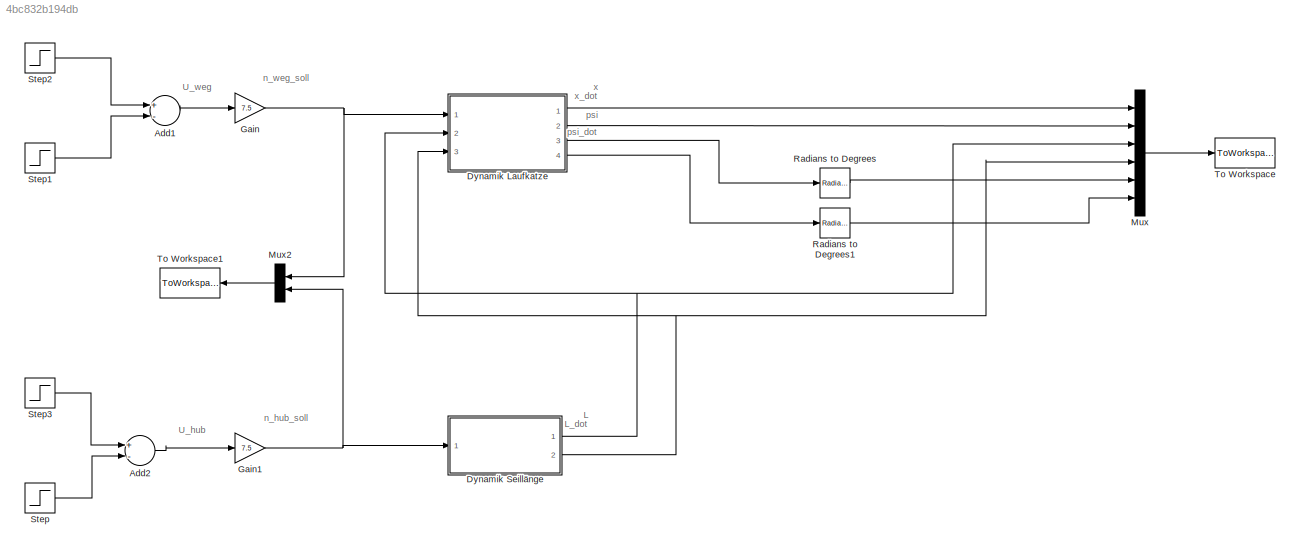
MODEL slx_4bc832b194db
KIND model
CONFIG AbsTol = auto
CONFIG EnableMultiTasking = off
CONFIG FixedStep = auto
CONFIG MaxStep = auto
CONFIG MinStep = auto
CONFIG RelTol = 1e-3
CONFIG SampleTimeConstraint = Unconstrained
CONFIG Solver = VariableStepAuto
CONFIG SolverName = VariableStepAuto
CONFIG StartTime = 0.0
CONFIG StopTime = 15
BLOCK [Sum] Add1
  InputSameDT = off
  Inputs = +-
  OutDataTypeStr = Inherit: Inherit via internal rule
  Ports = [2, 1]
  SaturateOnIntegerOverflow = off
BLOCK [Sum] Add2
  InputSameDT = off
  Inputs = +-
  OutDataTypeStr = Inherit: Inherit via internal rule
  Ports = [2, 1]
  SaturateOnIntegerOverflow = off
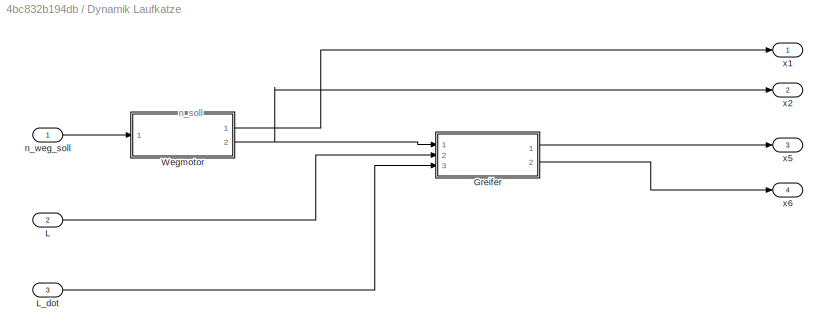
BLOCK [SubSystem] Dynamik Laufkatze
  Ports = [3, 4]
  RequestExecContextInheritance = off
  Variant = off
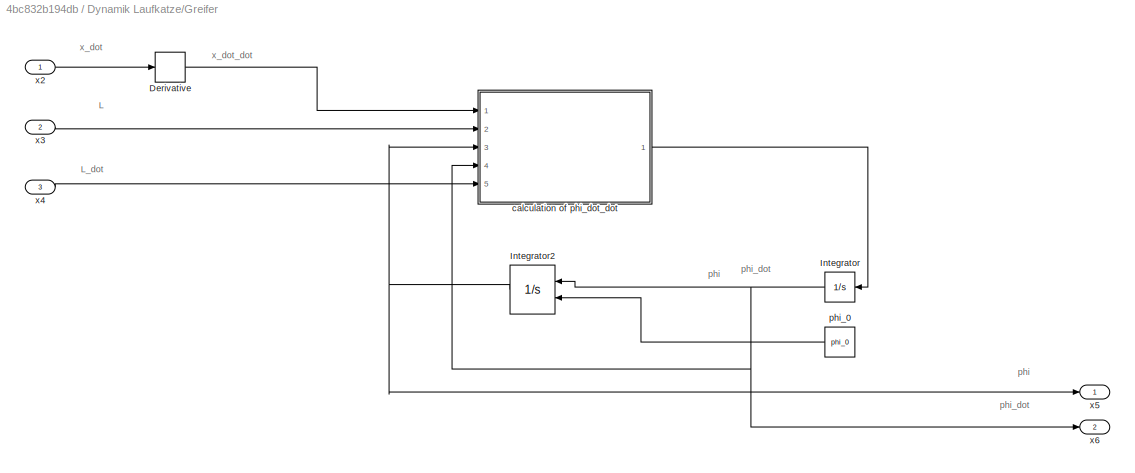
BLOCK [SubSystem] Dynamik Laufkatze/Greifer
  Ports = [3, 2]
  RequestExecContextInheritance = off
  Variant = off
BLOCK [Derivative] Dynamik Laufkatze/Greifer/Derivative
BLOCK [Integrator] Dynamik Laufkatze/Greifer/Integrator
  Ports = [1, 1]
BLOCK [Integrator] Dynamik Laufkatze/Greifer/Integrator2
  InitialConditionSource = external
  Ports = [2, 1]
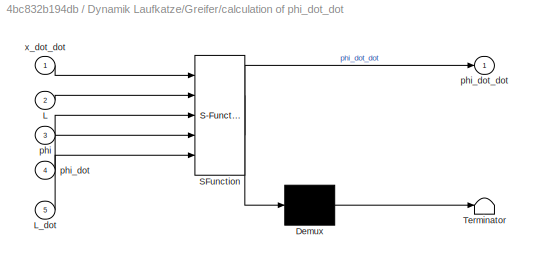
BLOCK [SubSystem] Dynamik Laufkatze/Greifer/calculation of phi_dot_dot
  ErrorFcn = Stateflow.Translate.translate
  PermitHierarchicalResolution = ExplicitOnly
  Ports = [5, 1]
  RequestExecContextInheritance = off
  SFBlockType = MATLAB Function
  TreatAsAtomicUnit = on
  Variant = off
BLOCK [Demux] Dynamik Laufkatze/Greifer/calculation of phi_dot_dot/ Demux 
  DisplayOption = bar
  Outputs = 1
  Ports = [1, 1]
BLOCK [S-Function] Dynamik Laufkatze/Greifer/calculation of phi_dot_dot/ SFunction 
  EnableBusSupport = off
  FunctionName = sf_sfun
  PortCounts = [5 2]
  Ports = [5, 2]
  SFcnIsStateOwnerBlock = off
  SFunctionDeploymentMode = off
  Tag = Stateflow S-Function nichtlinearesModell 2
BLOCK [Terminator] Dynamik Laufkatze/Greifer/calculation of phi_dot_dot/ Terminator 
BLOCK [Inport] Dynamik Laufkatze/Greifer/calculation of phi_dot_dot/L
  IconDisplay = Port number
  Port = 2
BLOCK [Inport] Dynamik Laufkatze/Greifer/calculation of phi_dot_dot/L_dot
  IconDisplay = Port number
  Port = 5
BLOCK [Inport] Dynamik Laufkatze/Greifer/calculation of phi_dot_dot/phi
  IconDisplay = Port number
  Port = 3
BLOCK [Inport] Dynamik Laufkatze/Greifer/calculation of phi_dot_dot/phi_dot
  IconDisplay = Port number
  Port = 4
BLOCK [Outport] Dynamik Laufkatze/Greifer/calculation of phi_dot_dot/phi_dot_dot
  IconDisplay = Port number
BLOCK [Inport] Dynamik Laufkatze/Greifer/calculation of phi_dot_dot/x_dot_dot
  IconDisplay = Port number
BLOCK [Constant] Dynamik Laufkatze/Greifer/phi_0
  Value = phi_0
BLOCK [Inport] Dynamik Laufkatze/Greifer/x2
  IconDisplay = Port number
BLOCK [Inport] Dynamik Laufkatze/Greifer/x3
  IconDisplay = Port number
  Port = 2
BLOCK [Inport] Dynamik Laufkatze/Greifer/x4
  IconDisplay = Port number
  Port = 3
BLOCK [Outport] Dynamik Laufkatze/Greifer/x5
  IconDisplay = Port number
BLOCK [Outport] Dynamik Laufkatze/Greifer/x6
  IconDisplay = Port number
  Port = 2
BLOCK [Inport] Dynamik Laufkatze/L
  IconDisplay = Port number
  Port = 2
BLOCK [Inport] Dynamik Laufkatze/L_dot
  IconDisplay = Port number
  Port = 3
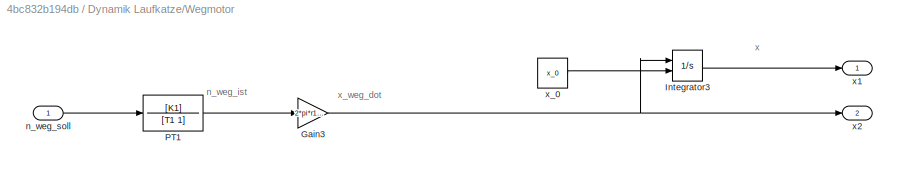
BLOCK [SubSystem] Dynamik Laufkatze/Wegmotor
  Ports = [1, 2]
  RequestExecContextInheritance = off
  Variant = off
BLOCK [Gain] Dynamik Laufkatze/Wegmotor/Gain3
  Gain = 2*pi*r1/ue1
  OutDataTypeStr = Inherit: Inherit via internal rule
  ParamDataTypeStr = Inherit: Inherit via internal rule
  SaturateOnIntegerOverflow = off
BLOCK [Integrator] Dynamik Laufkatze/Wegmotor/Integrator3
  InitialConditionSource = external
  Ports = [2, 1]
BLOCK [TransferFcn] Dynamik Laufkatze/Wegmotor/PT1
  Denominator = [T1 1]
  Numerator = [K1]
BLOCK [Inport] Dynamik Laufkatze/Wegmotor/n_weg_soll
  IconDisplay = Port number
BLOCK [Outport] Dynamik Laufkatze/Wegmotor/x1
  IconDisplay = Port number
BLOCK [Outport] Dynamik Laufkatze/Wegmotor/x2
  IconDisplay = Port number
  Port = 2
BLOCK [Constant] Dynamik Laufkatze/Wegmotor/x_0
  Value = x_0
BLOCK [Inport] Dynamik Laufkatze/n_weg_soll
  IconDisplay = Port number
BLOCK [Outport] Dynamik Laufkatze/x1
  IconDisplay = Port number
BLOCK [Outport] Dynamik Laufkatze/x2
  IconDisplay = Port number
  Port = 2
BLOCK [Outport] Dynamik Laufkatze/x5
  IconDisplay = Port number
  Port = 3
BLOCK [Outport] Dynamik Laufkatze/x6
  IconDisplay = Port number
  Port = 4
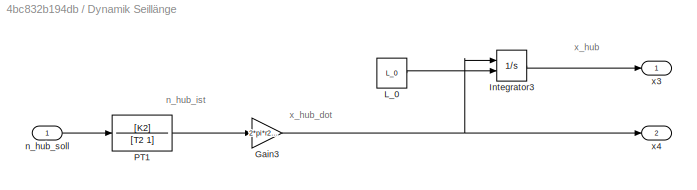
BLOCK [SubSystem] Dynamik Seillänge
  Ports = [1, 2]
  RequestExecContextInheritance = off
  Variant = off
BLOCK [Gain] Dynamik Seillänge/Gain3
  Gain = 2*pi*r2/ue2
  OutDataTypeStr = Inherit: Inherit via internal rule
  ParamDataTypeStr = Inherit: Inherit via internal rule
  SaturateOnIntegerOverflow = off
BLOCK [Integrator] Dynamik Seillänge/Integrator3
  InitialConditionSource = external
  Ports = [2, 1]
BLOCK [Constant] Dynamik Seillänge/L_0
  Value = L_0
BLOCK [TransferFcn] Dynamik Seillänge/PT1
  Denominator = [T2 1]
  Numerator = [K2]
BLOCK [Inport] Dynamik Seillänge/n_hub_soll
  IconDisplay = Port number
BLOCK [Outport] Dynamik Seillänge/x3
  IconDisplay = Port number
BLOCK [Outport] Dynamik Seillänge/x4
  IconDisplay = Port number
  Port = 2
BLOCK [Gain] Gain
  Gain = 7.5
  OutDataTypeStr = Inherit: Inherit via internal rule
  ParamDataTypeStr = Inherit: Inherit via internal rule
  SaturateOnIntegerOverflow = off
BLOCK [Gain] Gain1
  Gain = 7.5
  OutDataTypeStr = Inherit: Inherit via internal rule
  ParamDataTypeStr = Inherit: Inherit via internal rule
  SaturateOnIntegerOverflow = off
BLOCK [Mux] Mux
  DisplayOption = bar
  Inputs = 6
  Ports = [6, 1]
BLOCK [Mux] Mux2
  DisplayOption = bar
  Inputs = 2
  Ports = [2, 1]
BLOCK [Reference] Radians to Degrees  REF=simulink_extras/Transformations/Radians
to Degrees
  Ports = [1, 1]
  SourceBlock = simulink_extras/Transformations/Radians\nto Degrees
  SourceType = RadiansToDegrees
BLOCK [Reference] Radians to Degrees1  REF=simulink_extras/Transformations/Radians
to Degrees
  Ports = [1, 1]
  SourceBlock = simulink_extras/Transformations/Radians\nto Degrees
  SourceType = RadiansToDegrees
BLOCK [Step] Step
  After = u2
  SampleTime = 0
  Time = t2
BLOCK [Step] Step1
  After = u1
  SampleTime = 0
  Time = t1
BLOCK [Step] Step2
  After = u1
  SampleTime = 0
  Time = t01
BLOCK [Step] Step3
  After = u2
  SampleTime = 0
  Time = t02
BLOCK [ToWorkspace] To Workspace
  MaxDataPoints = inf
  Ports = [1]
  SampleTime = -1
  Save2DSignal = 3-D array (concatenate along third dimension)
  VariableName = x
BLOCK [ToWorkspace] To Workspace1
  MaxDataPoints = inf
  Ports = [1]
  SampleTime = -1
  Save2DSignal = 3-D array (concatenate along third dimension)
  VariableName = u
ANNOTATION (root): L
ANNOTATION (root): L_dot
ANNOTATION (root): U_hub
ANNOTATION (root): U_weg
ANNOTATION (root): n_hub_soll
ANNOTATION (root): n_weg_soll
ANNOTATION (root): psi
ANNOTATION (root): psi_dot
ANNOTATION (root): x
ANNOTATION (root): x_dot
ANNOTATION Dynamik Laufkatze: n_soll
ANNOTATION Dynamik Laufkatze/Greifer: L
ANNOTATION Dynamik Laufkatze/Greifer: L_dot
ANNOTATION Dynamik Laufkatze/Greifer: phi
ANNOTATION Dynamik Laufkatze/Greifer: phi_dot
ANNOTATION Dynamik Laufkatze/Greifer: x_dot
ANNOTATION Dynamik Laufkatze/Greifer: x_dot_dot
ANNOTATION Dynamik Laufkatze/Wegmotor: n_weg_ist
ANNOTATION Dynamik Laufkatze/Wegmotor: x
ANNOTATION Dynamik Laufkatze/Wegmotor: x_weg_dot
ANNOTATION Dynamik Seillänge: n_hub_ist
ANNOTATION Dynamik Seillänge: x_hub
ANNOTATION Dynamik Seillänge: x_hub_dot
LINE Add1:1 -> Gain:1
LINE Add2:1 -> Gain1:1
LINE Dynamik Laufkatze/Greifer/Derivative:1 -> Dynamik Laufkatze/Greifer/calculation of phi_dot_dot:1
NET Dynamik Laufkatze/Greifer/Integrator2:1 -> Dynamik Laufkatze/Greifer/calculation of phi_dot_dot:3, Dynamik Laufkatze/Greifer/x5:1
NET Dynamik Laufkatze/Greifer/Integrator:1 -> Dynamik Laufkatze/Greifer/Integrator2:1, Dynamik Laufkatze/Greifer/calculation of phi_dot_dot:4, Dynamik Laufkatze/Greifer/x6:1
LINE Dynamik Laufkatze/Greifer/calculation of phi_dot_dot:1 -> Dynamik Laufkatze/Greifer/Integrator:1
LINE Dynamik Laufkatze/Greifer/phi_0:1 -> Dynamik Laufkatze/Greifer/Integrator2:2
LINE Dynamik Laufkatze/Greifer/x2:1 -> Dynamik Laufkatze/Greifer/Derivative:1
LINE Dynamik Laufkatze/Greifer/x3:1 -> Dynamik Laufkatze/Greifer/calculation of phi_dot_dot:2
LINE Dynamik Laufkatze/Greifer/x4:1 -> Dynamik Laufkatze/Greifer/calculation of phi_dot_dot:5
LINE Dynamik Laufkatze/Greifer:1 -> Dynamik Laufkatze/x5:1
LINE Dynamik Laufkatze/Greifer:2 -> Dynamik Laufkatze/x6:1
LINE Dynamik Laufkatze/L:1 -> Dynamik Laufkatze/Greifer:2
LINE Dynamik Laufkatze/L_dot:1 -> Dynamik Laufkatze/Greifer:3
NET Dynamik Laufkatze/Wegmotor/Gain3:1 -> Dynamik Laufkatze/Wegmotor/Integrator3:1, Dynamik Laufkatze/Wegmotor/x2:1
LINE Dynamik Laufkatze/Wegmotor/Integrator3:1 -> Dynamik Laufkatze/Wegmotor/x1:1
LINE Dynamik Laufkatze/Wegmotor/PT1:1 -> Dynamik Laufkatze/Wegmotor/Gain3:1
LINE Dynamik Laufkatze/Wegmotor/n_weg_soll:1 -> Dynamik Laufkatze/Wegmotor/PT1:1
LINE Dynamik Laufkatze/Wegmotor/x_0:1 -> Dynamik Laufkatze/Wegmotor/Integrator3:2
LINE Dynamik Laufkatze/Wegmotor:1 -> Dynamik Laufkatze/x1:1
NET Dynamik Laufkatze/Wegmotor:2 -> Dynamik Laufkatze/Greifer:1, Dynamik Laufkatze/x2:1
LINE Dynamik Laufkatze/n_weg_soll:1 -> Dynamik Laufkatze/Wegmotor:1
LINE Dynamik Laufkatze:1 -> Mux:1
LINE Dynamik Laufkatze:2 -> Mux:2
LINE Dynamik Laufkatze:3 -> Radians to Degrees:1
LINE Dynamik Laufkatze:4 -> Radians to Degrees1:1
NET Dynamik Seillänge/Gain3:1 -> Dynamik Seillänge/Integrator3:1, Dynamik Seillänge/x4:1
LINE Dynamik Seillänge/Integrator3:1 -> Dynamik Seillänge/x3:1
LINE Dynamik Seillänge/L_0:1 -> Dynamik Seillänge/Integrator3:2
LINE Dynamik Seillänge/PT1:1 -> Dynamik Seillänge/Gain3:1
LINE Dynamik Seillänge/n_hub_soll:1 -> Dynamik Seillänge/PT1:1
NET Dynamik Seillänge:1 -> Dynamik Laufkatze:2, Mux:3
NET Dynamik Seillänge:2 -> Dynamik Laufkatze:3, Mux:4
NET Gain1:1 -> Dynamik Seillänge:1, Mux2:2
NET Gain:1 -> Dynamik Laufkatze:1, Mux2:1
LINE Mux2:1 -> To Workspace1:1
LINE Mux:1 -> To Workspace:1
LINE Radians to Degrees1:1 -> Mux:6
LINE Radians to Degrees:1 -> Mux:5
LINE Step1:1 -> Add1:2
LINE Step2:1 -> Add1:1
LINE Step3:1 -> Add2:1
LINE Step:1 -> Add2:2
note: NET lines group one-source signal fan-out (src -> all destinations, sorted); 1:1 wires keep LINE
CHART Dynamik Laufkatze/Greifer/calculation of phi_dot_dot states=1 transitions=1
  STATE_LABEL 'eML_blk_kernel()'
  STATE_LABEL 'SCRIPT:\nfunction phi_dot_dot = fcn(x_dot_dot,L,phi,phi_dot,L_dot)\n\nphi_dot_dot = -(cos(phi)/L)*x_dot_dot-9.81/L*sin(phi)-2*L_dot*phi_dot;'
